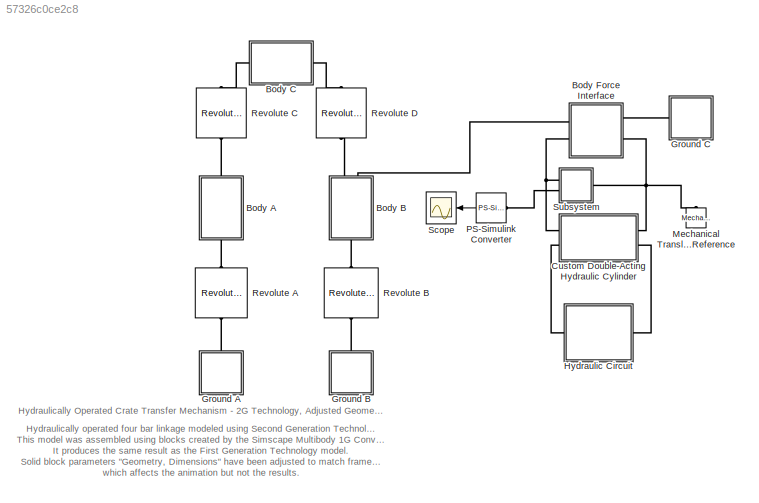
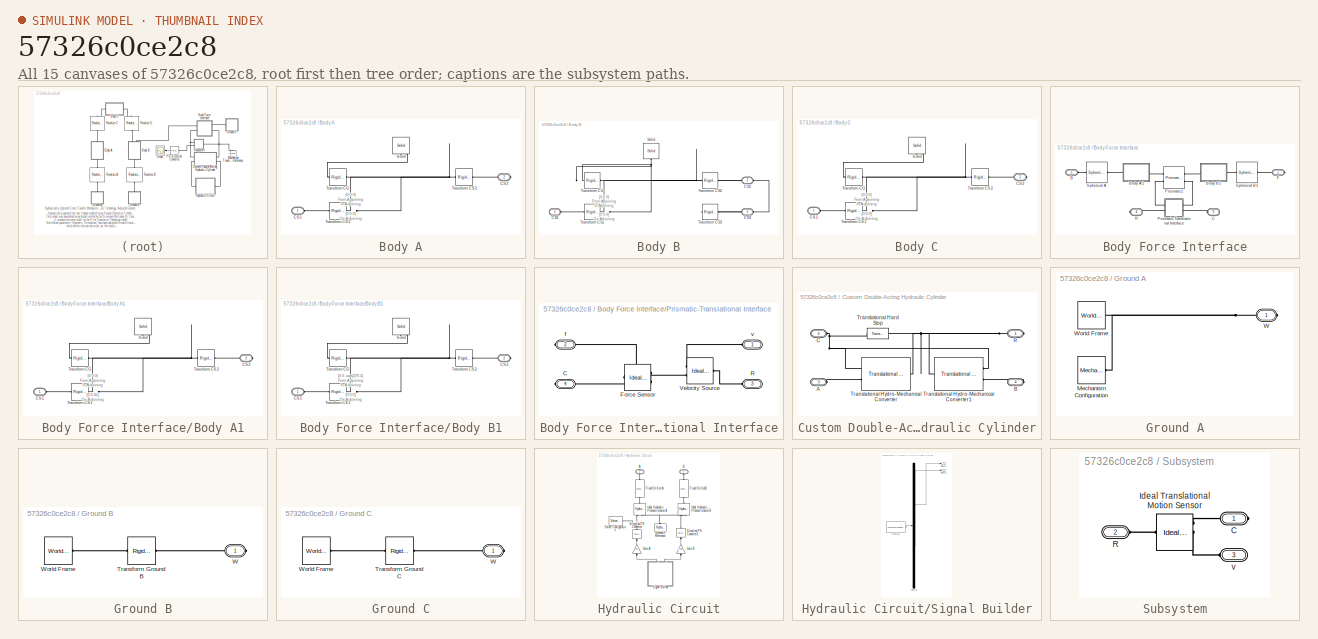
[diagram: thumbnail index - all 15 canvases of the model, root first then tree order]
MODEL slx_57326c0ce2c8
KIND model
CONFIG AbsTol = auto
CONFIG EnableMultiTasking = on
CONFIG FixedStep = auto
CONFIG MaxStep = auto
CONFIG MinStep = auto
CONFIG PostLoadFcn = mech_crate_transfer_param\n
CONFIG RelTol = 1e-3
CONFIG SampleTimeConstraint = Unconstrained
CONFIG Solver = ode15s
CONFIG SolverName = ode15s
CONFIG StartTime = 0.0
CONFIG StopTime = 10.0
WORKSPACE source: MAT-file member
WORKSPACE A_a = 0.05
WORKSPACE A_c = 0.05
WORKSPACE C_b = 0.05
BLOCK [SubSystem] Body A
  Ports = [0, 0, 0, 0, 0, 1, 1]
  RequestExecContextInheritance = off
  Variant = off
BLOCK [PMIOPort] Body A/CS1
  Port = 1
  Side = Left
BLOCK [PMIOPort] Body A/CS2
  Port = 2
  Side = Right
BLOCK [Reference] Body A/Solid  REF=sm_lib/Body Elements/Solid
  Ports = [0, 0, 0, 0, 0, 0, 1]
  SourceBlock = sm_lib/Body Elements/Solid
  SourceType = Solid
BLOCK [Reference] Body A/Transform CG  REF=sm_lib/Frames and
Transforms/Rigid
Transform
  Ports = [0, 0, 0, 0, 0, 1, 1]
  SourceBlock = sm_lib/Frames and\nTransforms/Rigid\nTransform
  SourceType = Rigid\nTransform
BLOCK [Reference] Body A/Transform CS1  REF=sm_lib/Frames and
Transforms/Rigid
Transform
  Ports = [0, 0, 0, 0, 0, 1, 1]
  SourceBlock = sm_lib/Frames and\nTransforms/Rigid\nTransform
  SourceType = Rigid\nTransform
BLOCK [Reference] Body A/Transform CS2  REF=sm_lib/Frames and
Transforms/Rigid
Transform
  Ports = [0, 0, 0, 0, 0, 1, 1]
  SourceBlock = sm_lib/Frames and\nTransforms/Rigid\nTransform
  SourceType = Rigid\nTransform
BLOCK [SubSystem] Body B
  Ports = [0, 0, 0, 0, 0, 1, 2]
  RequestExecContextInheritance = off
  Variant = off
BLOCK [PMIOPort] Body B/CS1
  Port = 1
  Side = Left
BLOCK [PMIOPort] Body B/CS2
  Port = 2
  Side = Right
BLOCK [PMIOPort] Body B/CS3
  Port = 3
  Side = Right
BLOCK [Reference] Body B/Solid  REF=sm_lib/Body Elements/Solid
  Ports = [0, 0, 0, 0, 0, 0, 1]
  SourceBlock = sm_lib/Body Elements/Solid
  SourceType = Solid
BLOCK [Reference] Body B/Transform CG  REF=sm_lib/Frames and
Transforms/Rigid
Transform
  Ports = [0, 0, 0, 0, 0, 1, 1]
  SourceBlock = sm_lib/Frames and\nTransforms/Rigid\nTransform
  SourceType = Rigid\nTransform
BLOCK [Reference] Body B/Transform CS1  REF=sm_lib/Frames and
Transforms/Rigid
Transform
  Ports = [0, 0, 0, 0, 0, 1, 1]
  SourceBlock = sm_lib/Frames and\nTransforms/Rigid\nTransform
  SourceType = Rigid\nTransform
BLOCK [Reference] Body B/Transform CS2  REF=sm_lib/Frames and
Transforms/Rigid
Transform
  Ports = [0, 0, 0, 0, 0, 1, 1]
  SourceBlock = sm_lib/Frames and\nTransforms/Rigid\nTransform
  SourceType = Rigid\nTransform
BLOCK [Reference] Body B/Transform CS3  REF=sm_lib/Frames and
Transforms/Rigid
Transform
  Ports = [0, 0, 0, 0, 0, 1, 1]
  SourceBlock = sm_lib/Frames and\nTransforms/Rigid\nTransform
  SourceType = Rigid\nTransform
BLOCK [SubSystem] Body C
  Ports = [0, 0, 0, 0, 0, 1, 1]
  RequestExecContextInheritance = off
  Variant = off
BLOCK [PMIOPort] Body C/CS1
  Port = 1
  Side = Left
BLOCK [PMIOPort] Body C/CS2
  Port = 2
  Side = Right
BLOCK [Reference] Body C/Solid  REF=sm_lib/Body Elements/Solid
  Ports = [0, 0, 0, 0, 0, 0, 1]
  SourceBlock = sm_lib/Body Elements/Solid
  SourceType = Solid
BLOCK [Reference] Body C/Transform CG  REF=sm_lib/Frames and
Transforms/Rigid
Transform
  Ports = [0, 0, 0, 0, 0, 1, 1]
  SourceBlock = sm_lib/Frames and\nTransforms/Rigid\nTransform
  SourceType = Rigid\nTransform
BLOCK [Reference] Body C/Transform CS1  REF=sm_lib/Frames and
Transforms/Rigid
Transform
  Ports = [0, 0, 0, 0, 0, 1, 1]
  SourceBlock = sm_lib/Frames and\nTransforms/Rigid\nTransform
  SourceType = Rigid\nTransform
BLOCK [Reference] Body C/Transform CS2  REF=sm_lib/Frames and
Transforms/Rigid
Transform
  Ports = [0, 0, 0, 0, 0, 1, 1]
  SourceBlock = sm_lib/Frames and\nTransforms/Rigid\nTransform
  SourceType = Rigid\nTransform
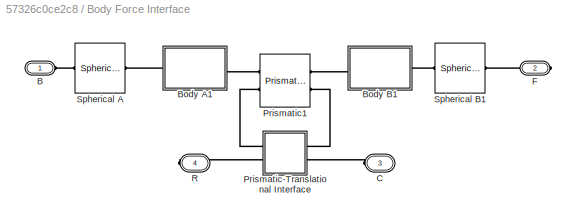
BLOCK [SubSystem] Body Force Interface
  Ports = [0, 0, 0, 0, 0, 2, 2]
  RequestExecContextInheritance = off
  Variant = off
BLOCK [PMIOPort] Body Force Interface/B
  Port = 1
  Side = Left
BLOCK [SubSystem] Body Force Interface/Body A1
  Ports = [0, 0, 0, 0, 0, 1, 1]
  RequestExecContextInheritance = off
  Variant = off
BLOCK [PMIOPort] Body Force Interface/Body A1/CS1
  Port = 1
  Side = Left
BLOCK [PMIOPort] Body Force Interface/Body A1/CS2
  Port = 2
  Side = Right
BLOCK [Reference] Body Force Interface/Body A1/Solid  REF=sm_lib/Body Elements/Solid
  Ports = [0, 0, 0, 0, 0, 0, 1]
  SourceBlock = sm_lib/Body Elements/Solid
  SourceType = Solid
BLOCK [Reference] Body Force Interface/Body A1/Transform CG  REF=sm_lib/Frames and
Transforms/Rigid
Transform
  Ports = [0, 0, 0, 0, 0, 1, 1]
  SourceBlock = sm_lib/Frames and\nTransforms/Rigid\nTransform
  SourceType = Rigid\nTransform
BLOCK [Reference] Body Force Interface/Body A1/Transform CS1  REF=sm_lib/Frames and
Transforms/Rigid
Transform
  Ports = [0, 0, 0, 0, 0, 1, 1]
  SourceBlock = sm_lib/Frames and\nTransforms/Rigid\nTransform
  SourceType = Rigid\nTransform
BLOCK [Reference] Body Force Interface/Body A1/Transform CS2  REF=sm_lib/Frames and
Transforms/Rigid
Transform
  Ports = [0, 0, 0, 0, 0, 1, 1]
  SourceBlock = sm_lib/Frames and\nTransforms/Rigid\nTransform
  SourceType = Rigid\nTransform
BLOCK [SubSystem] Body Force Interface/Body B1
  Ports = [0, 0, 0, 0, 0, 1, 1]
  RequestExecContextInheritance = off
  Variant = off
BLOCK [PMIOPort] Body Force Interface/Body B1/CS1
  Port = 1
  Side = Left
BLOCK [PMIOPort] Body Force Interface/Body B1/CS2
  Port = 2
  Side = Right
BLOCK [Reference] Body Force Interface/Body B1/Solid  REF=sm_lib/Body Elements/Solid
  Ports = [0, 0, 0, 0, 0, 0, 1]
  SourceBlock = sm_lib/Body Elements/Solid
  SourceType = Solid
BLOCK [Reference] Body Force Interface/Body B1/Transform CG  REF=sm_lib/Frames and
Transforms/Rigid
Transform
  Ports = [0, 0, 0, 0, 0, 1, 1]
  SourceBlock = sm_lib/Frames and\nTransforms/Rigid\nTransform
  SourceType = Rigid\nTransform
BLOCK [Reference] Body Force Interface/Body B1/Transform CS1  REF=sm_lib/Frames and
Transforms/Rigid
Transform
  Ports = [0, 0, 0, 0, 0, 1, 1]
  SourceBlock = sm_lib/Frames and\nTransforms/Rigid\nTransform
  SourceType = Rigid\nTransform
BLOCK [Reference] Body Force Interface/Body B1/Transform CS2  REF=sm_lib/Frames and
Transforms/Rigid
Transform
  Ports = [0, 0, 0, 0, 0, 1, 1]
  SourceBlock = sm_lib/Frames and\nTransforms/Rigid\nTransform
  SourceType = Rigid\nTransform
BLOCK [PMIOPort] Body Force Interface/C
  Port = 3
  Side = Left
BLOCK [PMIOPort] Body Force Interface/F
  Port = 2
  Side = Right
BLOCK [SubSystem] Body Force Interface/Prismatic-Translational Interface
  Ports = [0, 0, 0, 0, 0, 2, 2]
  RequestExecContextInheritance = off
  Variant = off
BLOCK [PMIOPort] Body Force Interface/Prismatic-Translational Interface/C
  Port = 4
  Side = Right
BLOCK [Reference] Body Force Interface/Prismatic-Translational Interface/Force Sensor  REF=fl_lib/Mechanical/Mechanical Sensors/Ideal Force Sensor
  Ports = [0, 0, 0, 0, 0, 1, 2]
  SourceBlock = fl_lib/Mechanical/Mechanical Sensors/Ideal Force Sensor
  SourceType = Ideal Force Sensor
BLOCK [PMIOPort] Body Force Interface/Prismatic-Translational Interface/R
  Port = 3
  Side = Left
BLOCK [Reference] Body Force Interface/Prismatic-Translational Interface/Velocity Source  REF=fl_lib/Mechanical/Mechanical Sources/Ideal Translational
Velocity Source
  Ports = [0, 0, 0, 0, 0, 1, 2]
  SourceBlock = fl_lib/Mechanical/Mechanical Sources/Ideal Translational\nVelocity Source
  SourceType = Ideal Translational\nVelocity Source
BLOCK [PMIOPort] Body Force Interface/Prismatic-Translational Interface/f
  Port = 2
  Side = Right
BLOCK [PMIOPort] Body Force Interface/Prismatic-Translational Interface/v
  Port = 1
  Side = Left
BLOCK [Reference] Body Force Interface/Prismatic1  REF=sm_lib/Joints/Prismatic
Joint
  Ports = [0, 0, 0, 0, 0, 2, 2]
  SourceBlock = sm_lib/Joints/Prismatic\nJoint
  SourceType = Prismatic\nJoint
BLOCK [PMIOPort] Body Force Interface/R
  Port = 4
  Side = Right
BLOCK [Reference] Body Force Interface/Spherical A   REF=sm_lib/Joints/Spherical
Joint
  Ports = [0, 0, 0, 0, 0, 1, 1]
  SourceBlock = sm_lib/Joints/Spherical\nJoint
  SourceType = Spherical\nJoint
BLOCK [Reference] Body Force Interface/Spherical B1  REF=sm_lib/Joints/Spherical
Joint
  Ports = [0, 0, 0, 0, 0, 1, 1]
  SourceBlock = sm_lib/Joints/Spherical\nJoint
  SourceType = Spherical\nJoint
BLOCK [SubSystem] Custom Double-Acting Hydraulic Cylinder
  Ports = [0, 0, 0, 0, 0, 2, 2]
  RequestExecContextInheritance = off
  Variant = off
BLOCK [PMIOPort] Custom Double-Acting Hydraulic Cylinder/A
  Port = 3
  Side = Left
  Tag = PMCPort
BLOCK [PMIOPort] Custom Double-Acting Hydraulic Cylinder/B
  Port = 4
  Side = Right
  Tag = PMCPort
BLOCK [PMIOPort] Custom Double-Acting Hydraulic Cylinder/C
  Port = 2
  Side = Left
  Tag = PMCPort
BLOCK [PMIOPort] Custom Double-Acting Hydraulic Cylinder/R
  Port = 1
  Side = Right
  Tag = PMCPort
BLOCK [Reference] Custom Double-Acting Hydraulic Cylinder/Translational Hard Stop  REF=fl_lib/Mechanical/Translational
Elements/Translational Hard
Stop
  Ports = [0, 0, 0, 0, 0, 1, 1]
  SourceBlock = fl_lib/Mechanical/Translational\nElements/Translational Hard\nStop
  SourceType = Translational Hard\nStop
BLOCK [Reference] Custom Double-Acting Hydraulic Cylinder/Translational Hydro-Mechanical Converter  REF=fl_lib/Hydraulic/Hydraulic Elements/Translational
Hydro-Mechanical
Converter
  Ports = [0, 0, 0, 0, 0, 2, 1]
  SourceBlock = fl_lib/Hydraulic/Hydraulic Elements/Translational\nHydro-Mechanical\nConverter
  SourceType = Translational\nHydro-Mechanical\nConverter
BLOCK [Reference] Custom Double-Acting Hydraulic Cylinder/Translational Hydro-Mechanical Converter1  REF=fl_lib/Hydraulic/Hydraulic Elements/Translational
Hydro-Mechanical
Converter
  Ports = [0, 0, 0, 0, 0, 2, 1]
  SourceBlock = fl_lib/Hydraulic/Hydraulic Elements/Translational\nHydro-Mechanical\nConverter
  SourceType = Translational\nHydro-Mechanical\nConverter
BLOCK [SubSystem] Ground A
  Ports = [0, 0, 0, 0, 0, 0, 1]
  RequestExecContextInheritance = off
  Variant = off
BLOCK [Reference] Ground A/Mechanism Configuration  REF=sm_lib/Utilities/Mechanism
Configuration
  Ports = [0, 0, 0, 0, 0, 0, 1]
  SourceBlock = sm_lib/Utilities/Mechanism\nConfiguration
  SourceType = Mechanism\nConfiguration
BLOCK [PMIOPort] Ground A/W
  Port = 1
  Side = Right
BLOCK [Reference] Ground A/World Frame  REF=sm_lib/Frames and
Transforms/World Frame
  Ports = [0, 0, 0, 0, 0, 0, 1]
  SourceBlock = sm_lib/Frames and\nTransforms/World Frame
  SourceType = World Frame
BLOCK [SubSystem] Ground B
  Ports = [0, 0, 0, 0, 0, 0, 1]
  RequestExecContextInheritance = off
  Variant = off
BLOCK [Reference] Ground B/Transform Ground B  REF=sm_lib/Frames and
Transforms/Rigid
Transform
  Ports = [0, 0, 0, 0, 0, 1, 1]
  SourceBlock = sm_lib/Frames and\nTransforms/Rigid\nTransform
  SourceType = Rigid\nTransform
BLOCK [PMIOPort] Ground B/W
  Port = 1
  Side = Right
BLOCK [Reference] Ground B/World Frame  REF=sm_lib/Frames and
Transforms/World Frame
  Ports = [0, 0, 0, 0, 0, 0, 1]
  SourceBlock = sm_lib/Frames and\nTransforms/World Frame
  SourceType = World Frame
BLOCK [SubSystem] Ground C
  Ports = [0, 0, 0, 0, 0, 0, 1]
  RequestExecContextInheritance = off
  Variant = off
BLOCK [Reference] Ground C/Transform Ground C  REF=sm_lib/Frames and
Transforms/Rigid
Transform
  Ports = [0, 0, 0, 0, 0, 1, 1]
  SourceBlock = sm_lib/Frames and\nTransforms/Rigid\nTransform
  SourceType = Rigid\nTransform
BLOCK [PMIOPort] Ground C/W
  Port = 1
  Side = Right
BLOCK [Reference] Ground C/World Frame  REF=sm_lib/Frames and
Transforms/World Frame
  Ports = [0, 0, 0, 0, 0, 0, 1]
  SourceBlock = sm_lib/Frames and\nTransforms/World Frame
  SourceType = World Frame
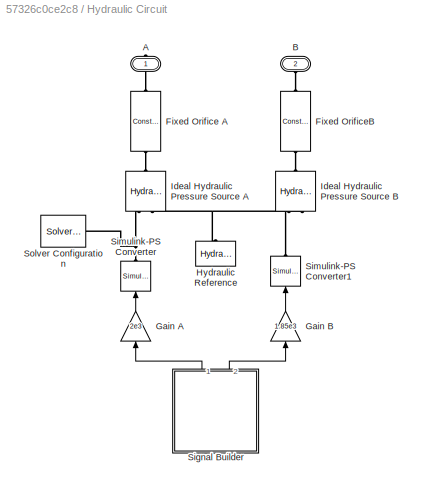
BLOCK [SubSystem] Hydraulic Circuit
  Ports = [0, 0, 0, 0, 0, 1, 1]
  RequestExecContextInheritance = off
  Variant = off
BLOCK [PMIOPort] Hydraulic Circuit/A
  Port = 1
  Side = Right
BLOCK [PMIOPort] Hydraulic Circuit/B
  Port = 2
  Side = Left
BLOCK [Reference] Hydraulic Circuit/Fixed Orifice A  REF=fl_lib/Hydraulic/Hydraulic Elements/Constant Area
Hydraulic Orifice
  Ports = [0, 0, 0, 0, 0, 1, 1]
  SourceBlock = fl_lib/Hydraulic/Hydraulic Elements/Constant Area\nHydraulic Orifice
  SourceType = Constant Area\nHydraulic Orifice
BLOCK [Reference] Hydraulic Circuit/Fixed OrificeB  REF=fl_lib/Hydraulic/Hydraulic Elements/Constant Area
Hydraulic Orifice
  Ports = [0, 0, 0, 0, 0, 1, 1]
  SourceBlock = fl_lib/Hydraulic/Hydraulic Elements/Constant Area\nHydraulic Orifice
  SourceType = Constant Area\nHydraulic Orifice
BLOCK [Gain] Hydraulic Circuit/Gain A
  Gain = 2e3
  OutDataTypeStr = Inherit: Inherit via internal rule
  ParamDataTypeStr = Inherit: Inherit via internal rule
  SaturateOnIntegerOverflow = off
BLOCK [Gain] Hydraulic Circuit/Gain B
  Gain = 1.85e3
  OutDataTypeStr = Inherit: Inherit via internal rule
  ParamDataTypeStr = Inherit: Inherit via internal rule
  SaturateOnIntegerOverflow = off
BLOCK [Reference] Hydraulic Circuit/Hydraulic Reference  REF=fl_lib/Hydraulic/Hydraulic Elements/Hydraulic Reference
  Ports = [0, 0, 0, 0, 0, 1]
  SourceBlock = fl_lib/Hydraulic/Hydraulic Elements/Hydraulic Reference
  SourceType = Hydraulic Reference
BLOCK [Reference] Hydraulic Circuit/Ideal Hydraulic Pressure Source A  REF=fl_lib/Hydraulic/Hydraulic Sources/Hydraulic Pressure
Source
  Ports = [0, 0, 0, 0, 0, 1, 2]
  SourceBlock = fl_lib/Hydraulic/Hydraulic Sources/Hydraulic Pressure\nSource
  SourceType = Hydraulic Pressure\nSource
BLOCK [Reference] Hydraulic Circuit/Ideal Hydraulic Pressure Source B  REF=fl_lib/Hydraulic/Hydraulic Sources/Hydraulic Pressure
Source
  Ports = [0, 0, 0, 0, 0, 1, 2]
  SourceBlock = fl_lib/Hydraulic/Hydraulic Sources/Hydraulic Pressure\nSource
  SourceType = Hydraulic Pressure\nSource
BLOCK [SubSystem] Hydraulic Circuit/Signal Builder
  ClipboardFcn = sigbuilder_block('clipboard');
  CloseFcn = sigbuilder_block('close');
  ContinueFcn = sigbuilder_block('continue')
  CopyFcn = sigbuilder_block('copy');
  DeleteFcn = sigbuilder_block('delete');
  LoadFcn = sigbuilder_block('load');
  MaskHideContents = on
  ModelCloseFcn = sigbuilder_block('modelClose');
  NameChangeFcn = sigbuilder_block('namechange');
  OpenFcn = sigbuilder_block('open',[388.5 359.25 550.5 371.25 ]);
  PauseFcn = sigbuilder_block('pause')
  Ports = [0, 2]
  PreSaveFcn = sigbuilder_block('preSave');
  RequestExecContextInheritance = off
  StartFcn = sigbuilder_block('start');
  StopFcn = sigbuilder_block('stop');
  Tag = STV Subsys
  Variant = off
BLOCK [Demux] Hydraulic Circuit/Signal Builder/Demux
  Outputs = 2
  Ports = [1, 2]
  Tag = STV Demux
BLOCK [FromWorkspace] Hydraulic Circuit/Signal Builder/FromWs
  SampleTime = 0
  Tag = STV FromWs
  VariableName = tuvar
  ZeroCross = on
BLOCK [Outport] Hydraulic Circuit/Signal Builder/Signal 1
  IconDisplay = Port number
  Tag = STV Outport
BLOCK [Outport] Hydraulic Circuit/Signal Builder/Signal 2
  IconDisplay = Port number
  Port = 2
  Tag = STV Outport
BLOCK [Reference] Hydraulic Circuit/Simulink-PS Converter  REF=nesl_utility/Simulink-PS
Converter
  Ports = [1, 0, 0, 0, 0, 0, 1]
  SourceBlock = nesl_utility/Simulink-PS\nConverter
  SourceType = Simulink-PS\nConverter
BLOCK [Reference] Hydraulic Circuit/Simulink-PS Converter1  REF=nesl_utility/Simulink-PS
Converter
  Ports = [1, 0, 0, 0, 0, 0, 1]
  SourceBlock = nesl_utility/Simulink-PS\nConverter
  SourceType = Simulink-PS\nConverter
BLOCK [Reference] Hydraulic Circuit/Solver Configuration  REF=nesl_utility/Solver
Configuration
  Ports = [0, 0, 0, 0, 0, 0, 1]
  SourceBlock = nesl_utility/Solver\nConfiguration
  SourceType = Solver\nConfiguration
BLOCK [Reference] Mechanical Translational Reference  REF=fl_lib/Mechanical/Translational
Elements/Mechanical
Translational
Reference
  Ports = [0, 0, 0, 0, 0, 1]
  SourceBlock = fl_lib/Mechanical/Translational\nElements/Mechanical\nTranslational\nReference
  SourceType = Mechanical\nTranslational\nReference
BLOCK [Reference] PS-Simulink Converter  REF=nesl_utility/PS-Simulink
Converter
  Ports = [0, 1, 0, 0, 0, 1]
  SourceBlock = nesl_utility/PS-Simulink\nConverter
  SourceType = PS-Simulink\nConverter
BLOCK [Reference] Revolute A  REF=sm_lib/Joints/Revolute Joint
  Ports = [0, 0, 0, 0, 0, 1, 1]
  SourceBlock = sm_lib/Joints/Revolute Joint
  SourceType = Revolute Joint
BLOCK [Reference] Revolute B  REF=sm_lib/Joints/Revolute Joint
  Ports = [0, 0, 0, 0, 0, 1, 1]
  SourceBlock = sm_lib/Joints/Revolute Joint
  SourceType = Revolute Joint
BLOCK [Reference] Revolute C  REF=sm_lib/Joints/Revolute Joint
  Ports = [0, 0, 0, 0, 0, 1, 1]
  SourceBlock = sm_lib/Joints/Revolute Joint
  SourceType = Revolute Joint
BLOCK [Reference] Revolute D  REF=sm_lib/Joints/Revolute Joint
  Ports = [0, 0, 0, 0, 0, 1, 1]
  SourceBlock = sm_lib/Joints/Revolute Joint
  SourceType = Revolute Joint
BLOCK [Scope] Scope
  NumInputPorts = 1
  Ports = [1]
  ScopeSpecificationString = Simulink.scopes.TimeScopeBlockCfg('CurrentConfiguration', extmgr.ConfigurationSet(extmgr.Configuration('Core','General UI',true),extmgr.Configuration('Core','Source UI',true),extmgr.Configuration('Sources','WiredSimulink',true,'DataLoggingLimitDataPoints',true,'DataLoggingSaveFormat','Array','DataLoggingDecimation','1'),extmgr.Configuration('Visuals','Time Domain',true,'SerializedDisplays',{struct...<+1650ch>
BLOCK [SubSystem] Subsystem
  Ports = [0, 0, 0, 0, 0, 2, 1]
  RequestExecContextInheritance = off
  Variant = off
BLOCK [PMIOPort] Subsystem/C
  Port = 1
  Side = Right
BLOCK [Reference] Subsystem/Ideal Translational Motion Sensor  REF=fl_lib/Mechanical/Mechanical Sensors/Ideal Translational
Motion Sensor
  Ports = [0, 0, 0, 0, 0, 1, 3]
  SourceBlock = fl_lib/Mechanical/Mechanical Sensors/Ideal Translational\nMotion Sensor
  SourceType = Ideal Translational\nMotion Sensor
BLOCK [PMIOPort] Subsystem/R
  Port = 2
  Side = Left
BLOCK [PMIOPort] Subsystem/v
  Port = 3
  Side = Left
ANNOTATION (root): Hydraulically Operated Crate Transfer Mechanism - 2G Technology, Adjusted Geometry
ANNOTATION (root): Hydraulically operated four bar linkage modeled using Second Generation Technology. This model was assembled using blocks created by the Simscape Multibody 1G Conversion Assistant. It produces the same result as the First Generation Technology model. Solid block parameters "Geometry, Dimensions" have been adjusted to match frame locations, which affects the animation but not the results.
ANNOTATION Body A: [0 0 0] From:Adjoining In:Adjoining [0 0 0] Ori:Adjoining
ANNOTATION Body B: [0 0 0] From:Adjoining In:Adjoining [0 0 0] Ori:Adjoining
ANNOTATION Body C: [0 0 0] From:Adjoining In:Adjoining [0 0 0] Ori:Adjoining
ANNOTATION Body Force Interface/Body A1: [0 0 0] From:Adjoining In:Adjoining [0 0 45] Ori:Adjoining
ANNOTATION Body Force Interface/Body B1: [0 0 -sqrt(2)*0.5] From:Adjoining In:Adjoining [0 0 0] Ori:Adjoining
LINE Hydraulic Circuit/Gain A:1 -> Hydraulic Circuit/Simulink-PS Converter:1
LINE Hydraulic Circuit/Gain B:1 -> Hydraulic Circuit/Simulink-PS Converter1:1
LINE Hydraulic Circuit/Signal Builder/Demux:1 -> Hydraulic Circuit/Signal Builder/Signal 1:1
LINE Hydraulic Circuit/Signal Builder/Demux:2 -> Hydraulic Circuit/Signal Builder/Signal 2:1
LINE Hydraulic Circuit/Signal Builder/FromWs:1 -> Hydraulic Circuit/Signal Builder/Demux:1
LINE Hydraulic Circuit/Signal Builder:1 -> Hydraulic Circuit/Gain A:1
LINE Hydraulic Circuit/Signal Builder:2 -> Hydraulic Circuit/Gain B:1
LINE PS-Simulink Converter:1 -> Scope:1
PLINE Body A/CS1:RConn1 -- Body A/Transform CS1:LConn1
PLINE Body A/CS2:RConn1 -- Body A/Transform CS2:RConn1
PLINE Body A/Solid:RConn1 -- Body A/Transform CG:RConn1
PNET net1: Body A/Transform CG:LConn1 -- Body A/Transform CS1:RConn1 -- Body A/Transform CS2:LConn1
PLINE Body A:LConn1 -- Revolute A:RConn1
PLINE Body A:RConn1 -- Revolute C:LConn1
PLINE Body B/CS1:RConn1 -- Body B/Transform CS1:LConn1
PLINE Body B/CS2:RConn1 -- Body B/Transform CS2:RConn1
PLINE Body B/CS3:RConn1 -- Body B/Transform CS3:RConn1
PNET net2: Body B/Solid:RConn1 -- Body B/Transform CG:RConn1 -- Body B/Transform CS3:LConn1
PNET net3: Body B/Transform CG:LConn1 -- Body B/Transform CS1:RConn1 -- Body B/Transform CS2:LConn1
PLINE Body B:LConn1 -- Revolute B:RConn1
PLINE Body B:RConn1 -- Revolute D:LConn1
PLINE Body B:RConn2 -- Body Force Interface:LConn1
PLINE Body C/CS1:RConn1 -- Body C/Transform CS1:LConn1
PLINE Body C/CS2:RConn1 -- Body C/Transform CS2:RConn1
PLINE Body C/Solid:RConn1 -- Body C/Transform CG:RConn1
PNET net4: Body C/Transform CG:LConn1 -- Body C/Transform CS1:RConn1 -- Body C/Transform CS2:LConn1
PLINE Body C:LConn1 -- Revolute C:RConn1
PLINE Body C:RConn1 -- Revolute D:RConn1
PLINE Body Force Interface/B:RConn1 -- Body Force Interface/Spherical A :LConn1
PLINE Body Force Interface/Body A1/CS1:RConn1 -- Body Force Interface/Body A1/Transform CS1:LConn1
PLINE Body Force Interface/Body A1/CS2:RConn1 -- Body Force Interface/Body A1/Transform CS2:RConn1
PLINE Body Force Interface/Body A1/Solid:RConn1 -- Body Force Interface/Body A1/Transform CG:RConn1
PNET net5: Body Force Interface/Body A1/Transform CG:LConn1 -- Body Force Interface/Body A1/Transform CS1:RConn1 -- Body Force Interface/Body A1/Transform CS2:LConn1
PLINE Body Force Interface/Body A1:LConn1 -- Body Force Interface/Spherical A :RConn1
PLINE Body Force Interface/Body A1:RConn1 -- Body Force Interface/Prismatic1:RConn1
PLINE Body Force Interface/Body B1/CS1:RConn1 -- Body Force Interface/Body B1/Transform CS1:LConn1
PLINE Body Force Interface/Body B1/CS2:RConn1 -- Body Force Interface/Body B1/Transform CS2:RConn1
PLINE Body Force Interface/Body B1/Solid:RConn1 -- Body Force Interface/Body B1/Transform CG:RConn1
PNET net6: Body Force Interface/Body B1/Transform CG:LConn1 -- Body Force Interface/Body B1/Transform CS1:RConn1 -- Body Force Interface/Body B1/Transform CS2:LConn1
PLINE Body Force Interface/Body B1:LConn1 -- Body Force Interface/Prismatic1:LConn1
PLINE Body Force Interface/Body B1:RConn1 -- Body Force Interface/Spherical B1:LConn1
PLINE Body Force Interface/C:RConn1 -- Body Force Interface/Prismatic-Translational Interface:RConn2
PLINE Body Force Interface/F:RConn1 -- Body Force Interface/Spherical B1:RConn1
PLINE Body Force Interface/Prismatic-Translational Interface/C:RConn1 -- Body Force Interface/Prismatic-Translational Interface/Force Sensor:RConn1
PLINE Body Force Interface/Prismatic-Translational Interface/Force Sensor:LConn1 -- Body Force Interface/Prismatic-Translational Interface/Velocity Source:RConn2
PLINE Body Force Interface/Prismatic-Translational Interface/Force Sensor:RConn2 -- Body Force Interface/Prismatic-Translational Interface/f:RConn1
PLINE Body Force Interface/Prismatic-Translational Interface/R:RConn1 -- Body Force Interface/Prismatic-Translational Interface/Velocity Source:LConn1
PLINE Body Force Interface/Prismatic-Translational Interface/Velocity Source:RConn1 -- Body Force Interface/Prismatic-Translational Interface/v:RConn1
PLINE Body Force Interface/Prismatic-Translational Interface:LConn1 -- Body Force Interface/Prismatic1:RConn2
PLINE Body Force Interface/Prismatic-Translational Interface:LConn2 -- Body Force Interface/R:RConn1
PLINE Body Force Interface/Prismatic-Translational Interface:RConn1 -- Body Force Interface/Prismatic1:LConn2
PNET net7: Body Force Interface:LConn2 -- Custom Double-Acting Hydraulic Cylinder:LConn1 -- Subsystem:LConn1
PLINE Body Force Interface:RConn1 -- Ground C:RConn1
PNET net8: Body Force Interface:RConn2 -- Custom Double-Acting Hydraulic Cylinder:RConn1 -- Mechanical Translational Reference:LConn1 -- Subsystem:RConn1
PLINE Custom Double-Acting Hydraulic Cylinder/A:RConn1 -- Custom Double-Acting Hydraulic Cylinder/Translational Hydro-Mechanical Converter:LConn2
PLINE Custom Double-Acting Hydraulic Cylinder/B:RConn1 -- Custom Double-Acting Hydraulic Cylinder/Translational Hydro-Mechanical Converter1:LConn2
PNET net9: Custom Double-Acting Hydraulic Cylinder/C:RConn1 -- Custom Double-Acting Hydraulic Cylinder/Translational Hard Stop:RConn1 -- Custom Double-Acting Hydraulic Cylinder/Translational Hydro-Mechanical Converter1:LConn1 -- Custom Double-Acting Hydraulic Cylinder/Translational Hydro-Mechanical Converter:LConn1
PNET net10: Custom Double-Acting Hydraulic Cylinder/R:RConn1 -- Custom Double-Acting Hydraulic Cylinder/Translational Hard Stop:LConn1 -- Custom Double-Acting Hydraulic Cylinder/Translational Hydro-Mechanical Converter1:RConn1 -- Custom Double-Acting Hydraulic Cylinder/Translational Hydro-Mechanical Converter:RConn1
PLINE Custom Double-Acting Hydraulic Cylinder:LConn2 -- Hydraulic Circuit:LConn1
PLINE Custom Double-Acting Hydraulic Cylinder:RConn2 -- Hydraulic Circuit:RConn1
PNET net11: Ground A/Mechanism Configuration:RConn1 -- Ground A/W:RConn1 -- Ground A/World Frame:RConn1
PLINE Ground A:RConn1 -- Revolute A:LConn1
PLINE Ground B/Transform Ground B:LConn1 -- Ground B/World Frame:RConn1
PLINE Ground B/Transform Ground B:RConn1 -- Ground B/W:RConn1
PLINE Ground B:RConn1 -- Revolute B:LConn1
PLINE Ground C/Transform Ground C:LConn1 -- Ground C/World Frame:RConn1
PLINE Ground C/Transform Ground C:RConn1 -- Ground C/W:RConn1
PLINE Hydraulic Circuit/A:RConn1 -- Hydraulic Circuit/Fixed Orifice A:RConn1
PLINE Hydraulic Circuit/B:RConn1 -- Hydraulic Circuit/Fixed OrificeB:LConn1
PLINE Hydraulic Circuit/Fixed Orifice A:LConn1 -- Hydraulic Circuit/Ideal Hydraulic Pressure Source A:LConn1
PLINE Hydraulic Circuit/Fixed OrificeB:RConn1 -- Hydraulic Circuit/Ideal Hydraulic Pressure Source B:LConn1
PNET net12: Hydraulic Circuit/Hydraulic Reference:LConn1 -- Hydraulic Circuit/Ideal Hydraulic Pressure Source A:RConn2 -- Hydraulic Circuit/Ideal Hydraulic Pressure Source B:RConn2
PNET net13: Hydraulic Circuit/Ideal Hydraulic Pressure Source A:RConn1 -- Hydraulic Circuit/Simulink-PS Converter:RConn1 -- Hydraulic Circuit/Solver Configuration:RConn1
PLINE Hydraulic Circuit/Ideal Hydraulic Pressure Source B:RConn1 -- Hydraulic Circuit/Simulink-PS Converter1:RConn1
PLINE PS-Simulink Converter:LConn1 -- Subsystem:LConn2
PLINE Subsystem/C:RConn1 -- Subsystem/Ideal Translational Motion Sensor:RConn1
PLINE Subsystem/Ideal Translational Motion Sensor:LConn1 -- Subsystem/R:RConn1
PLINE Subsystem/Ideal Translational Motion Sensor:RConn2 -- Subsystem/v:RConn1
note: PNET lines group multi-terminal physical nets as a canonical sorted terminal list (undirected conserving connections); 2-terminal nets keep the pairwise PLINE form
